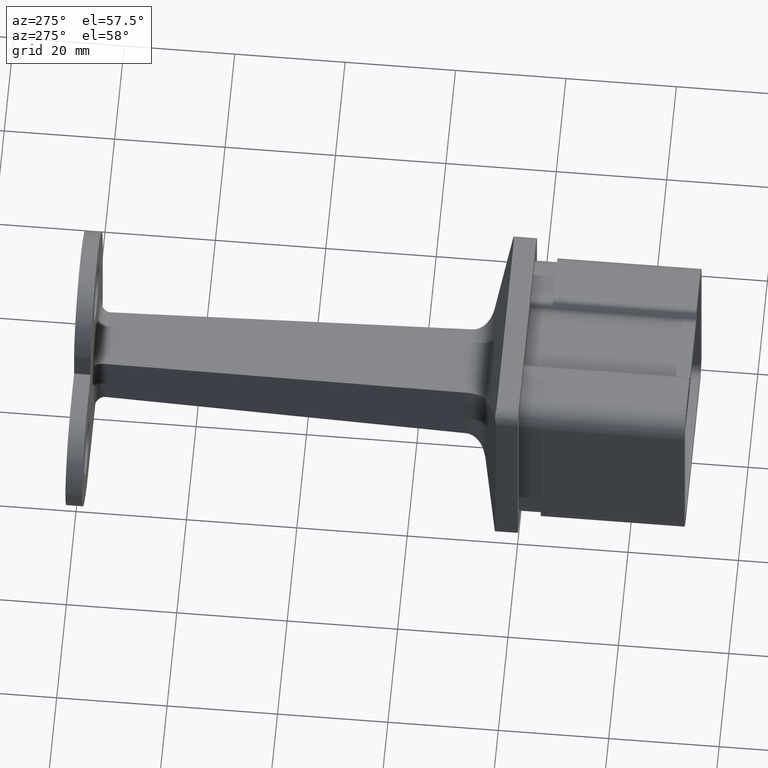
[diagram: clean part render]
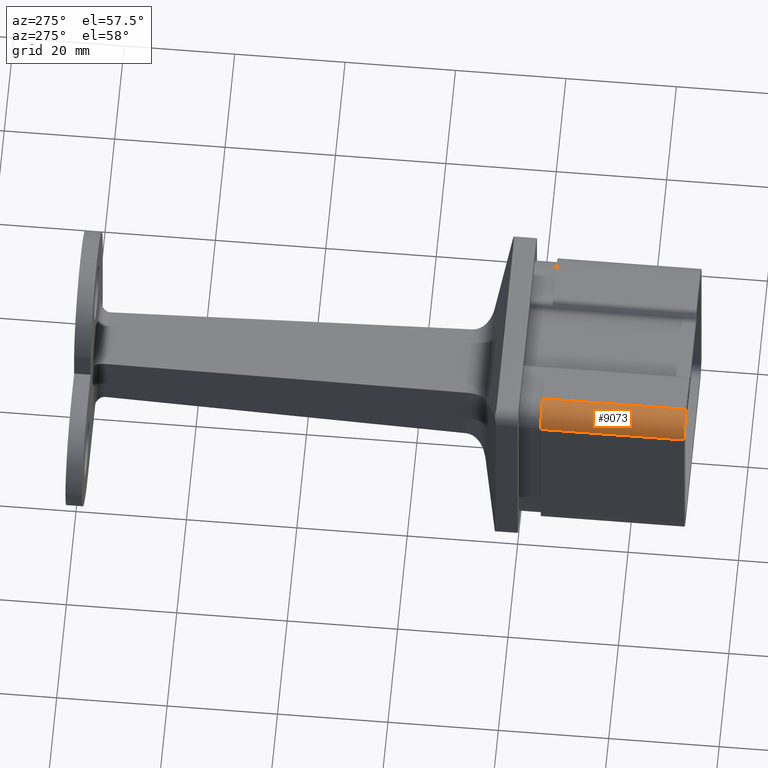
[diagram: same view with one face highlighted and labeled with its STEP entity id]
A machine part, auxiliary view. The second image highlights one B-rep face of the part: STEP entity #9073.
In plain terms, the highlighted cylindrical surface (edge-blend (fillet) strip) has radius 4 mm, axis along (-0, 1, 0).
Its self-contained STEP definition (entity closure, byte-faithful):
#739 = LINE ( 'NONE', #12351, #2809 ) ;
#820 = VERTEX_POINT ( 'NONE', #1963 ) ;
#1774 = DIRECTION ( 'NONE',  ( -0.000000000000000000, 1.000000000000000000, 0.000000000000000000 ) ) ;
#1963 = CARTESIAN_POINT ( 'NONE',  ( -18.00000000000000355, -4.000000000000000000, 13.99999999999999645 ) ) ;
#2114 = VECTOR ( 'NONE', #1774, 1000.000000000000000 ) ;
#2503 = DIRECTION ( 'NONE',  ( -0.000000000000000000, 1.000000000000000000, 0.000000000000000000 ) ) ;
#2809 = VECTOR ( 'NONE', #13462, 1000.000000000000000 ) ;
#3269 = AXIS2_PLACEMENT_3D ( 'NONE', #6320, #7451, #5259 ) ;
#3556 = EDGE_CURVE ( 'NONE', #10796, #820, #9563, .T. ) ;
#3599 = CARTESIAN_POINT ( 'NONE',  ( -14.00000000000000178, -4.000000000000000000, 17.99999999999999645 ) ) ;
#4176 = ORIENTED_EDGE ( 'NONE', *, *, #10815, .F. ) ;
#5024 = VERTEX_POINT ( 'NONE', #3599 ) ;
#5259 = DIRECTION ( 'NONE',  ( 0.000000000000000000, 0.000000000000000000, -1.000000000000000000 ) ) ;
#5912 = CARTESIAN_POINT ( 'NONE',  ( -14.00000000000000178, -30.00000000000000000, 13.99999999999999645 ) ) ;
#6320 = CARTESIAN_POINT ( 'NONE',  ( -14.00000000000000178, -4.000000000000000000, 13.99999999999999645 ) ) ;
#6771 = AXIS2_PLACEMENT_3D ( 'NONE', #5912, #2503, #13617 ) ;
#7250 = AXIS2_PLACEMENT_3D ( 'NONE', #11782, #13831, #8288 ) ;
#7451 = DIRECTION ( 'NONE',  ( -0.000000000000000000, 1.000000000000000000, -0.000000000000000000 ) ) ;
#8238 = ORIENTED_EDGE ( 'NONE', *, *, #11085, .F. ) ;
#8288 = DIRECTION ( 'NONE',  ( 0.000000000000000000, 0.000000000000000000, -1.000000000000000000 ) ) ;
#8412 = ORIENTED_EDGE ( 'NONE', *, *, #11005, .F. ) ;
#9073 = ADVANCED_FACE ( 'NONE', ( #12913 ), #12577, .T. ) ;
#9421 = CIRCLE ( 'NONE', #3269, 4.000000000000000000 ) ;
#9497 = ORIENTED_EDGE ( 'NONE', *, *, #3556, .F. ) ;
#9563 = LINE ( 'NONE', #12014, #2114 ) ;
#10464 = CIRCLE ( 'NONE', #7250, 4.000000000000000000 ) ;
#10496 = EDGE_LOOP ( 'NONE', ( #8412, #4176, #8238, #9497 ) ) ;
#10796 = VERTEX_POINT ( 'NONE', #12300 ) ;
#10815 = EDGE_CURVE ( 'NONE', #5024, #11248, #739, .T. ) ;
#11005 = EDGE_CURVE ( 'NONE', #11248, #10796, #10464, .T. ) ;
#11085 = EDGE_CURVE ( 'NONE', #820, #5024, #9421, .T. ) ;
#11248 = VERTEX_POINT ( 'NONE', #13338 ) ;
#11782 = CARTESIAN_POINT ( 'NONE',  ( -14.00000000000000178, -30.00000000000000000, 13.99999999999999645 ) ) ;
#12014 = CARTESIAN_POINT ( 'NONE',  ( -18.00000000000000355, -30.00000000000000000, 13.99999999999999645 ) ) ;
#12300 = CARTESIAN_POINT ( 'NONE',  ( -18.00000000000000355, -30.00000000000000000, 13.99999999999999645 ) ) ;
#12351 = CARTESIAN_POINT ( 'NONE',  ( -14.00000000000000178, -30.00000000000000000, 17.99999999999999645 ) ) ;
#12577 = CYLINDRICAL_SURFACE ( 'NONE', #6771, 3.999999999999998224 ) ;
#12913 = FACE_OUTER_BOUND ( 'NONE', #10496, .T. ) ;
#13338 = CARTESIAN_POINT ( 'NONE',  ( -14.00000000000000178, -30.00000000000000000, 17.99999999999999645 ) ) ;
#13462 = DIRECTION ( 'NONE',  ( -0.000000000000000000, -1.000000000000000000, -0.000000000000000000 ) ) ;
#13617 = DIRECTION ( 'NONE',  ( 0.000000000000000000, 0.000000000000000000, 1.000000000000000000 ) ) ;
#13831 = DIRECTION ( 'NONE',  ( 0.000000000000000000, -1.000000000000000000, 0.000000000000000000 ) ) ;